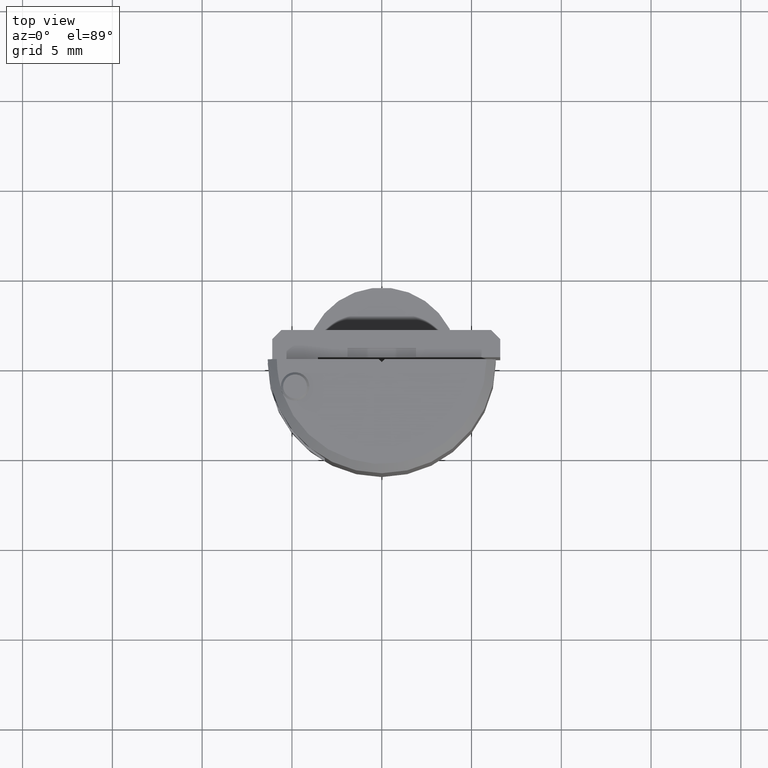
[diagram: clean part render]
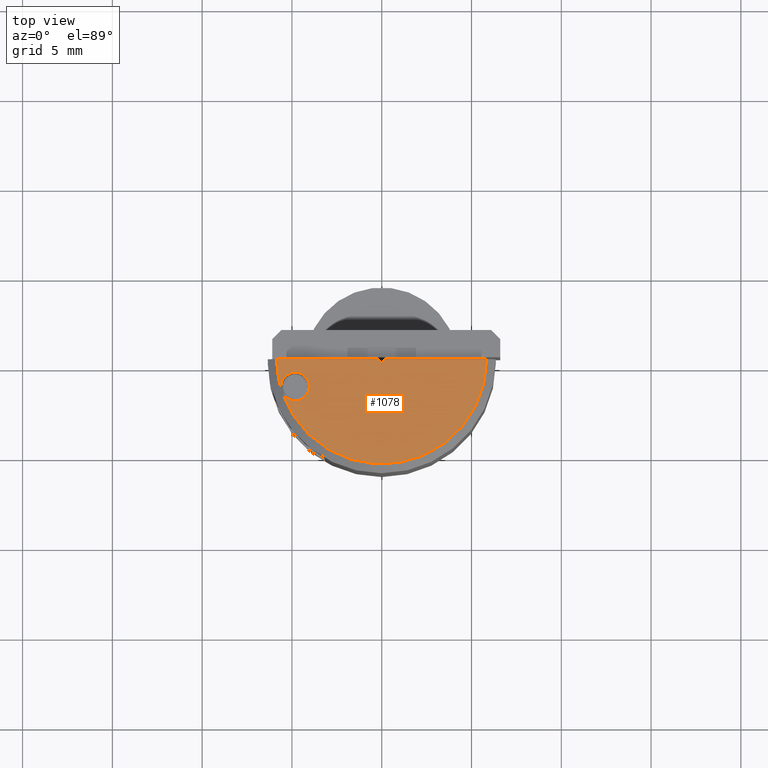
[diagram: same view with one face highlighted and labeled with its STEP entity id]
A machine part, top view. The second image highlights one B-rep face of the part: STEP entity #1078.
In plain terms, the highlighted planar face has unit normal (0, 0, 1).
Its self-contained STEP definition (entity closure, byte-faithful):
#30 = CIRCLE ( 'NONE', #3395, 0.2300000000000001200 ) ;
#99 = DIRECTION ( 'NONE',  ( 0.0000000000000000000, 0.0000000000000000000, 1.000000000000000000 ) ) ;
#318 = CARTESIAN_POINT ( 'NONE',  ( 0.0000000000000000000, 0.0000000000000000000, 0.7518110236220472100 ) ) ;
#515 = CARTESIAN_POINT ( 'NONE',  ( 0.0000000000000000000, -0.007006601717798212700, 0.7518110236220472100 ) ) ;
#621 = CIRCLE ( 'NONE', #8229, 0.03125000000000000700 ) ;
#750 = LINE ( 'NONE', #4617, #5274 ) ;
#789 = CARTESIAN_POINT ( 'NONE',  ( -0.2212500000000000000, -0.05999999999999999800, 0.7518110236220472100 ) ) ;
#827 = DIRECTION ( 'NONE',  ( 0.0000000000000000000, 0.0000000000000000000, 1.000000000000000000 ) ) ;
#1078 = ADVANCED_FACE ( 'NONE', ( #6667 ), #2847, .T. ) ;
#1465 = ORIENTED_EDGE ( 'NONE', *, *, #2552, .F. ) ;
#1513 = AXIS2_PLACEMENT_3D ( 'NONE', #318, #5656, #7207 ) ;
#1528 = DIRECTION ( 'NONE',  ( -0.7071067811865469100, 0.7071067811865482400, -0.0000000000000000000 ) ) ;
#1701 = LINE ( 'NONE', #7350, #8362 ) ;
#1996 = ORIENTED_EDGE ( 'NONE', *, *, #4911, .T. ) ;
#2016 = CARTESIAN_POINT ( 'NONE',  ( 0.2300000000000000100, 2.195464837405662100E-020, 0.7518110236220472100 ) ) ;
#2058 = VERTEX_POINT ( 'NONE', #6470 ) ;
#2202 = ORIENTED_EDGE ( 'NONE', *, *, #2473, .F. ) ;
#2473 = EDGE_CURVE ( 'NONE', #4686, #4024, #8729, .T. ) ;
#2552 = EDGE_CURVE ( 'NONE', #5392, #4686, #621, .T. ) ;
#2810 = ORIENTED_EDGE ( 'NONE', *, *, #4792, .T. ) ;
#2824 = AXIS2_PLACEMENT_3D ( 'NONE', #9477, #3292, #3324 ) ;
#2847 = PLANE ( 'NONE',  #9811 ) ;
#2881 = DIRECTION ( 'NONE',  ( 1.000000000000000000, 0.0000000000000000000, -0.0000000000000000000 ) ) ;
#3093 = VECTOR ( 'NONE', #1528, 39.37007874015748100 ) ;
#3104 = EDGE_CURVE ( 'NONE', #8843, #5392, #9360, .T. ) ;
#3197 = EDGE_CURVE ( 'NONE', #6558, #7045, #6162, .T. ) ;
#3292 = DIRECTION ( 'NONE',  ( 0.0000000000000000000, 0.0000000000000000000, 1.000000000000000000 ) ) ;
#3324 = DIRECTION ( 'NONE',  ( 1.000000000000000000, 0.0000000000000000000, 0.0000000000000000000 ) ) ;
#3395 = AXIS2_PLACEMENT_3D ( 'NONE', #4774, #827, #6876 ) ;
#3965 = CARTESIAN_POINT ( 'NONE',  ( 0.007006601717798212700, 5.334834616502831700E-019, 0.7518110236220472100 ) ) ;
#4024 = VERTEX_POINT ( 'NONE', #4437 ) ;
#4437 = CARTESIAN_POINT ( 'NONE',  ( -0.2210487344991218000, -0.06354098658611462300, 0.7518110236220472100 ) ) ;
#4495 = EDGE_LOOP ( 'NONE', ( #9007, #1996, #2202, #1465, #8757, #2810, #6622, #8482, #6888 ) ) ;
#4555 = VERTEX_POINT ( 'NONE', #2016 ) ;
#4617 = CARTESIAN_POINT ( 'NONE',  ( -0.2500000000000000000, 0.0000000000000000000, 0.7518110236220472100 ) ) ;
#4686 = VERTEX_POINT ( 'NONE', #789 ) ;
#4774 = CARTESIAN_POINT ( 'NONE',  ( 0.0000000000000000000, 0.0000000000000000000, 0.7518110236220472100 ) ) ;
#4792 = EDGE_CURVE ( 'NONE', #8843, #4555, #30, .T. ) ;
#4911 = EDGE_CURVE ( 'NONE', #6103, #4024, #6241, .T. ) ;
#5006 = CARTESIAN_POINT ( 'NONE',  ( -0.2300000000000000400, -3.074115144889860700E-019, 0.7518110236220472100 ) ) ;
#5274 = VECTOR ( 'NONE', #9176, 39.37007874015748100 ) ;
#5392 = VERTEX_POINT ( 'NONE', #7023 ) ;
#5435 = DIRECTION ( 'NONE',  ( 1.000000000000000000, 0.0000000000000000000, 0.0000000000000000000 ) ) ;
#5616 = EDGE_CURVE ( 'NONE', #4555, #6558, #1701, .T. ) ;
#5656 = DIRECTION ( 'NONE',  ( 0.0000000000000000000, 0.0000000000000000000, 1.000000000000000000 ) ) ;
#5669 = CARTESIAN_POINT ( 'NONE',  ( -0.1899999999999999700, -0.05999999999999999800, 0.7518110236220472100 ) ) ;
#5688 = AXIS2_PLACEMENT_3D ( 'NONE', #9226, #99, #5435 ) ;
#5867 = EDGE_CURVE ( 'NONE', #7045, #2058, #8700, .T. ) ;
#5904 = CARTESIAN_POINT ( 'NONE',  ( 0.0000000000000000000, 0.0000000000000000000, 0.7518110236220472100 ) ) ;
#6034 = VECTOR ( 'NONE', #8048, 39.37007874015748900 ) ;
#6103 = VERTEX_POINT ( 'NONE', #5006 ) ;
#6162 = LINE ( 'NONE', #515, #6034 ) ;
#6241 = CIRCLE ( 'NONE', #1513, 0.2300000000000001200 ) ;
#6425 = DIRECTION ( 'NONE',  ( 0.0000000000000000000, 0.0000000000000000000, 1.000000000000000000 ) ) ;
#6470 = CARTESIAN_POINT ( 'NONE',  ( -0.007006601717798192700, -7.469896857675719000E-018, 0.7518110236220472100 ) ) ;
#6558 = VERTEX_POINT ( 'NONE', #3965 ) ;
#6622 = ORIENTED_EDGE ( 'NONE', *, *, #5616, .T. ) ;
#6667 = FACE_OUTER_BOUND ( 'NONE', #4495, .T. ) ;
#6876 = DIRECTION ( 'NONE',  ( 1.000000000000000000, 0.0000000000000000000, 0.0000000000000000000 ) ) ;
#6888 = ORIENTED_EDGE ( 'NONE', *, *, #5867, .T. ) ;
#6946 = CARTESIAN_POINT ( 'NONE',  ( -0.007006601717798192700, -7.469896857675719000E-018, 0.7518110236220472100 ) ) ;
#7023 = CARTESIAN_POINT ( 'NONE',  ( -0.1587499999999999700, -0.05999999999999999800, 0.7518110236220472100 ) ) ;
#7045 = VERTEX_POINT ( 'NONE', #7871 ) ;
#7176 = DIRECTION ( 'NONE',  ( 1.000000000000000000, 0.0000000000000000000, 0.0000000000000000000 ) ) ;
#7207 = DIRECTION ( 'NONE',  ( 1.000000000000000000, 0.0000000000000000000, 0.0000000000000000000 ) ) ;
#7350 = CARTESIAN_POINT ( 'NONE',  ( 0.007006601717798212700, 5.334834616502831700E-019, 0.7518110236220472100 ) ) ;
#7413 = DIRECTION ( 'NONE',  ( -1.000000000000000000, 2.195464837405661100E-018, -0.0000000000000000000 ) ) ;
#7468 = DIRECTION ( 'NONE',  ( 0.0000000000000000000, 0.0000000000000000000, 1.000000000000000000 ) ) ;
#7618 = CARTESIAN_POINT ( 'NONE',  ( -0.2174513442162436200, -0.07493272248189551700, 0.7518110236220472100 ) ) ;
#7871 = CARTESIAN_POINT ( 'NONE',  ( 0.0000000000000000000, -0.007006601717798212700, 0.7518110236220472100 ) ) ;
#8048 = DIRECTION ( 'NONE',  ( -0.7071067811865474600, -0.7071067811865474600, -0.0000000000000000000 ) ) ;
#8229 = AXIS2_PLACEMENT_3D ( 'NONE', #5669, #6425, #7176 ) ;
#8362 = VECTOR ( 'NONE', #7413, 39.37007874015748100 ) ;
#8401 = EDGE_CURVE ( 'NONE', #2058, #6103, #750, .T. ) ;
#8482 = ORIENTED_EDGE ( 'NONE', *, *, #3197, .T. ) ;
#8700 = LINE ( 'NONE', #6946, #3093 ) ;
#8729 = CIRCLE ( 'NONE', #5688, 0.03125000000000000700 ) ;
#8757 = ORIENTED_EDGE ( 'NONE', *, *, #3104, .F. ) ;
#8843 = VERTEX_POINT ( 'NONE', #7618 ) ;
#9007 = ORIENTED_EDGE ( 'NONE', *, *, #8401, .T. ) ;
#9176 = DIRECTION ( 'NONE',  ( -1.000000000000000000, 3.074115144889867100E-017, -0.0000000000000000000 ) ) ;
#9226 = CARTESIAN_POINT ( 'NONE',  ( -0.1899999999999999700, -0.05999999999999999800, 0.7518110236220472100 ) ) ;
#9360 = CIRCLE ( 'NONE', #2824, 0.03125000000000000700 ) ;
#9477 = CARTESIAN_POINT ( 'NONE',  ( -0.1899999999999999700, -0.05999999999999999800, 0.7518110236220472100 ) ) ;
#9811 = AXIS2_PLACEMENT_3D ( 'NONE', #5904, #7468, #2881 ) ;